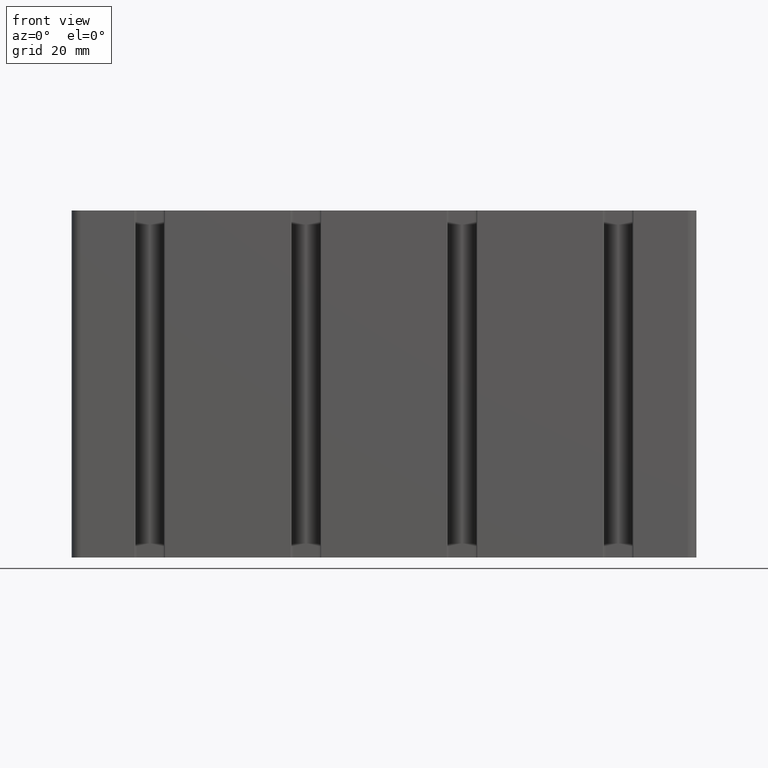
[diagram: clean part render]
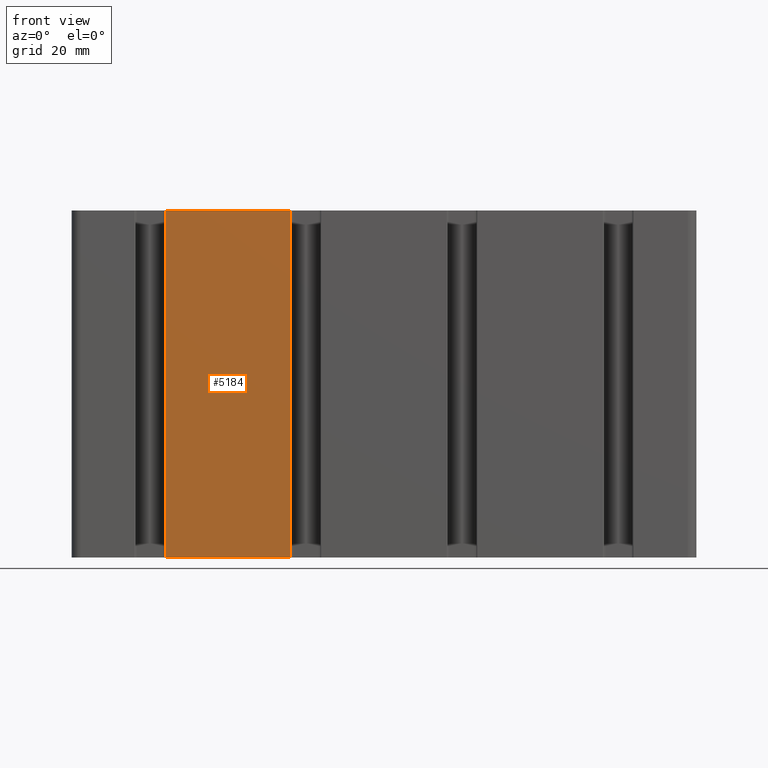
[diagram: same view with one face highlighted and labeled with its STEP entity id]
A machine part, front view. The second image highlights one B-rep face of the part: STEP entity #5184.
In plain terms, the highlighted planar face has unit normal (0, -1, 0).
Its self-contained STEP definition (entity closure, byte-faithful):
#632=FACE_OUTER_BOUND('',#894,.T.);
#894=EDGE_LOOP('',(#4235,#4236,#4237,#4238));
#1102=LINE('',#7706,#1634);
#1135=LINE('',#7804,#1667);
#1440=LINE('',#8685,#1972);
#1441=LINE('',#8686,#1973);
#1634=VECTOR('',#6178,100.);
#1667=VECTOR('',#6273,100.);
#1972=VECTOR('',#7138,36.0999999999925);
#1973=VECTOR('',#7139,36.0999999999925);
#2165=VERTEX_POINT('',#7702);
#2166=VERTEX_POINT('',#7704);
#2199=VERTEX_POINT('',#7801);
#2200=VERTEX_POINT('',#7803);
#2754=EDGE_CURVE('',#2165,#2166,#1102,.T.);
#2802=EDGE_CURVE('',#2199,#2200,#1135,.T.);
#3240=EDGE_CURVE('',#2200,#2166,#1440,.T.);
#3241=EDGE_CURVE('',#2199,#2165,#1441,.T.);
#4235=ORIENTED_EDGE('',*,*,#2754,.T.);
#4236=ORIENTED_EDGE('',*,*,#3240,.F.);
#4237=ORIENTED_EDGE('',*,*,#2802,.F.);
#4238=ORIENTED_EDGE('',*,*,#3241,.T.);
#4930=PLANE('',#5668);
#5184=ADVANCED_FACE('',(#632),#4930,.T.);
#5668=AXIS2_PLACEMENT_3D('',#8684,#7136,#7137);
#6178=DIRECTION('',(0.,0.,-1.));
#6273=DIRECTION('',(0.,0.,-1.));
#7136=DIRECTION('center_axis',(0.,-1.,0.));
#7137=DIRECTION('ref_axis',(1.,0.,0.));
#7138=DIRECTION('',(-1.,0.,0.));
#7139=DIRECTION('',(-1.,0.,0.));
#7702=CARTESIAN_POINT('',(-63.0500000000025,-22.5,100.));
#7704=CARTESIAN_POINT('',(-63.0500000000025,-22.5,0.));
#7706=CARTESIAN_POINT('',(-63.0500000000024,-22.5,0.));
#7801=CARTESIAN_POINT('',(-26.95000000001,-22.5,100.));
#7803=CARTESIAN_POINT('',(-26.95000000001,-22.5,0.));
#7804=CARTESIAN_POINT('',(-26.95000000001,-22.5,0.));
#8684=CARTESIAN_POINT('Origin',(-87.5,-22.5,0.));
#8685=CARTESIAN_POINT('',(-43.75,-22.5,0.));
#8686=CARTESIAN_POINT('',(-43.75,-22.5,100.));